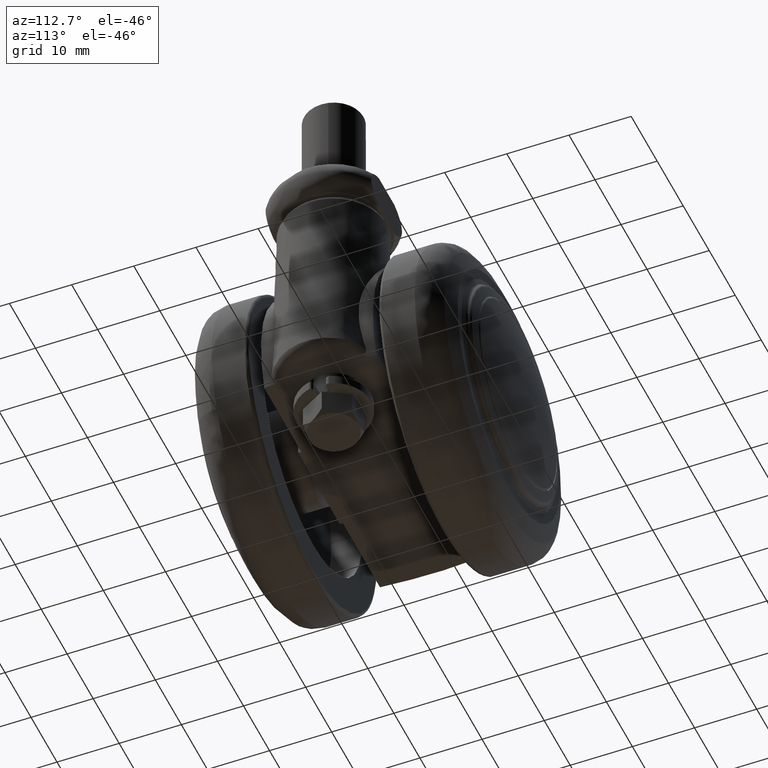
[diagram: clean part render]
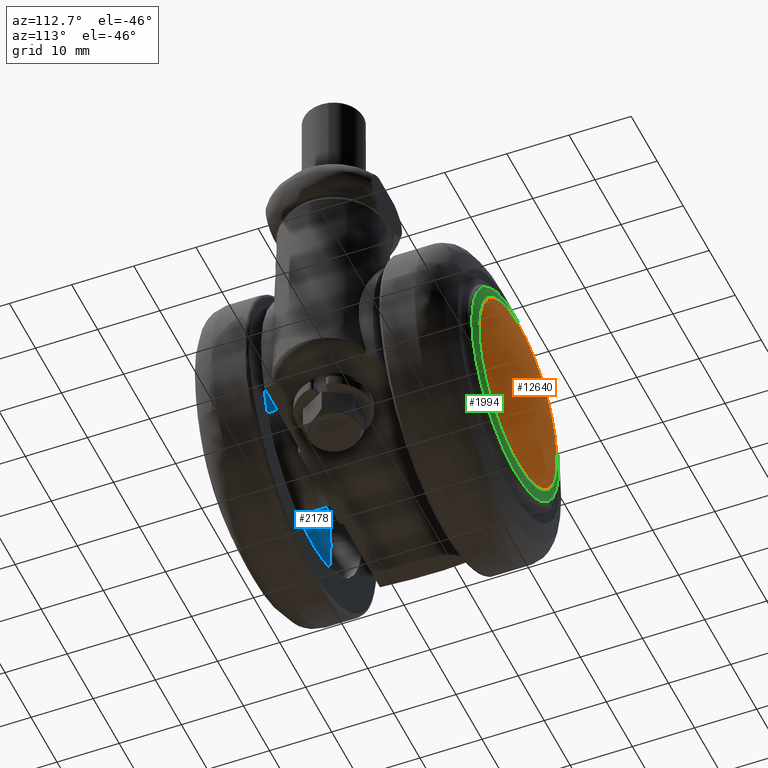
[diagram: same view with three faces highlighted in distinct colors, each labeled with its STEP entity id]
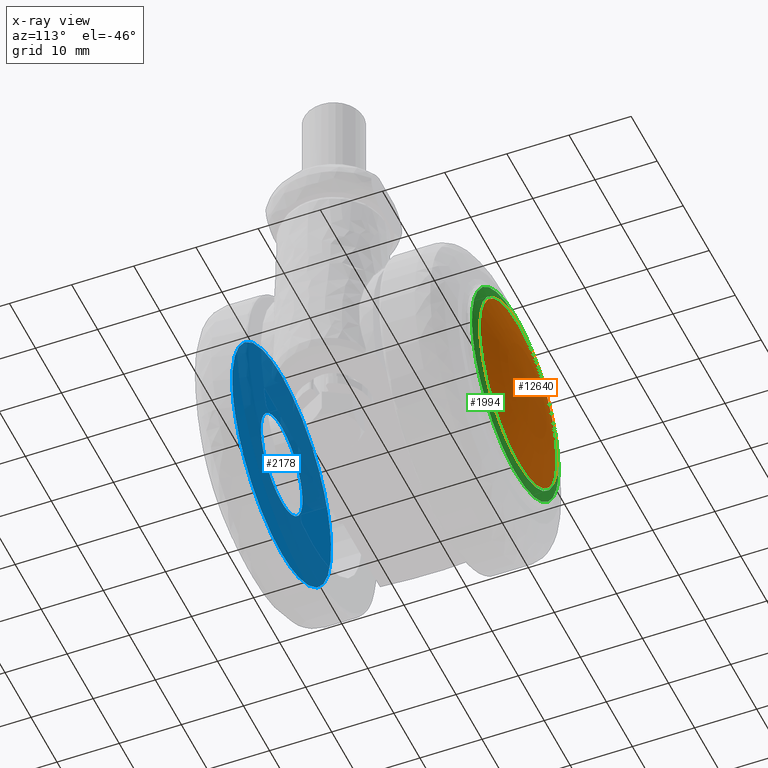
[diagram: x-ray of the same camera — body ghosted, the three highlighted faces saturated]
A machine part, auxiliary view with three faces highlighted in distinct colors.
The next image is the same camera in x-ray (body ghosted, the three faces saturated) — at least one of them is partly hidden behind the body in this view.
Their STEP definitions:

[orange] entity #12640 — the highlighted face is a freeform B-spline surface patch.
#9549=CARTESIAN_POINT('',(5.926938161823641,22.599255053341800,-13.481635294383331));
#9550=VERTEX_POINT('',#9549);
#9564=CARTESIAN_POINT('',(0.0,22.599255056600999,14.726951002130320));
#9565=VERTEX_POINT('',#9564);
#9566=CARTESIAN_POINT('',(0.0,22.599255056600999,14.726951002130320));
#9567=CARTESIAN_POINT('',(14.726951002130319,22.599255056600999,14.726951002130319));
#9568=CARTESIAN_POINT('',(14.726951002130320,22.599255056600999,-2.621149E-016));
#9569=CARTESIAN_POINT('',(14.726951002130319,22.599255056600992,-9.612881172707668));
#9570=CARTESIAN_POINT('',(5.926938161823641,22.599255053341789,-13.481635294383334));
#9578=(BOUNDED_CURVE()B_SPLINE_CURVE(2,(#9566,#9567,#9568,#9569,#9570),.UNSPECIFIED.,.F.,.U.)B_SPLINE_CURVE_WITH_KNOTS((3,2,3),(0.500000000000000,0.750000000000000,0.931662010431912),.UNSPECIFIED.)CURVE()GEOMETRIC_REPRESENTATION_ITEM()RATIONAL_B_SPLINE_CURVE((1.0,0.707106781186548,1.0,0.787169716113897,0.883644850240147))REPRESENTATION_ITEM(''));
#9579=EDGE_CURVE('',#9565,#9550,#9578,.T.);
#9581=CARTESIAN_POINT('',(-14.309172923474369,22.599255056404619,-3.482909141406380));
#9582=VERTEX_POINT('',#9581);
#9583=CARTESIAN_POINT('',(-14.309172923474376,22.599255056404626,-3.482909141406380));
#9584=CARTESIAN_POINT('',(-14.726951002130326,22.599255056601002,-1.766510998526684));
#9585=CARTESIAN_POINT('',(-14.726951002130320,22.599255056600999,-2.621149E-016));
#9586=CARTESIAN_POINT('',(-14.726951002130319,22.599255056600999,14.726951002130319));
#9587=CARTESIAN_POINT('',(0.0,22.599255056600999,14.726951002130320));
#9595=(BOUNDED_CURVE()B_SPLINE_CURVE(2,(#9583,#9584,#9585,#9586,#9587),.UNSPECIFIED.,.F.,.U.)B_SPLINE_CURVE_WITH_KNOTS((3,2,3),(0.209598322307066,0.250000000000000,0.500000000000000),.UNSPECIFIED.)CURVE()GEOMETRIC_REPRESENTATION_ITEM()RATIONAL_B_SPLINE_CURVE((0.920631806224154,0.952666490300212,1.0,0.707106781186548,1.0))REPRESENTATION_ITEM(''));
#9596=EDGE_CURVE('',#9582,#9565,#9595,.T.);
#9641=CARTESIAN_POINT('',(0.0,22.599255056600999,-14.726951002130320));
#9642=VERTEX_POINT('',#9641);
#9643=CARTESIAN_POINT('',(0.0,22.599255056600999,-14.726951002130320));
#9644=CARTESIAN_POINT('',(-11.572328774366317,22.599255056600992,-14.726951002130322));
#9645=CARTESIAN_POINT('',(-14.309172923474378,22.599255056404619,-3.482909141406380));
#9653=(BOUNDED_CURVE()B_SPLINE_CURVE(2,(#9643,#9644,#9645),.UNSPECIFIED.,.F.,.U.)B_SPLINE_CURVE_WITH_KNOTS((3,3),(0.0,0.209598322307066),.UNSPECIFIED.)CURVE()GEOMETRIC_REPRESENTATION_ITEM()RATIONAL_B_SPLINE_CURVE((1.0,0.754440290886335,0.920631806224154))REPRESENTATION_ITEM(''));
#9654=EDGE_CURVE('',#9642,#9582,#9653,.T.);
#9656=CARTESIAN_POINT('',(5.926938161823641,22.599255053341793,-13.481635294383336));
#9657=CARTESIAN_POINT('',(3.094296429752681,22.599255056600999,-14.726951002130324));
#9658=CARTESIAN_POINT('',(0.0,22.599255056600999,-14.726951002130320));
#9666=(BOUNDED_CURVE()B_SPLINE_CURVE(2,(#9656,#9657,#9658),.UNSPECIFIED.,.F.,.U.)B_SPLINE_CURVE_WITH_KNOTS((3,3),(0.931662010431912,1.0),.UNSPECIFIED.)CURVE()GEOMETRIC_REPRESENTATION_ITEM()RATIONAL_B_SPLINE_CURVE((0.883644850240147,0.919937065072651,1.0))REPRESENTATION_ITEM(''));
#9667=EDGE_CURVE('',#9550,#9642,#9666,.T.);
#12610=CARTESIAN_POINT('',(-15.829709842010661,20.005647351095902,15.829986090365244));
#12611=CARTESIAN_POINT('',(-8.071202480209092,22.208393669579195,16.142686665696019));
#12612=CARTESIAN_POINT('',(8.068882567178905,22.208393669579195,16.142686665696019));
#12613=CARTESIAN_POINT('',(15.825336094572215,20.006888932141290,15.830162344482185));
#12614=CARTESIAN_POINT('',(-16.142416089958182,22.208472070397931,8.071348897715129));
#12615=CARTESIAN_POINT('',(-8.233857186931674,24.499999999999989,8.234000878099884));
#12616=CARTESIAN_POINT('',(8.231490521911994,24.499999999999989,8.234000878099884));
#12617=CARTESIAN_POINT('',(16.137959491341814,22.209763189586987,8.071440540976507));
#12618=CARTESIAN_POINT('',(-16.142416089958182,22.208472070397931,-8.071348783451848));
#12619=CARTESIAN_POINT('',(-8.233857186931674,24.499999999999989,-8.234000761533995));
#12620=CARTESIAN_POINT('',(8.231490521911994,24.499999999999989,-8.234000761533995));
#12621=CARTESIAN_POINT('',(16.137959491341814,22.209763189586987,-8.071440426711929));
#12622=CARTESIAN_POINT('',(-15.829709850692895,20.005647412256948,-15.829985874948019));
#12623=CARTESIAN_POINT('',(-8.071202484723408,22.208393733180419,-16.142686446198404));
#12624=CARTESIAN_POINT('',(8.068882571691924,22.208393733180419,-16.142686446198404));
#12625=CARTESIAN_POINT('',(15.825336103252146,20.006888993303701,-15.830162129062655));
#12633=(BOUNDED_SURFACE()B_SPLINE_SURFACE(2,2,((#12610,#12614,#12618,#12622),(#12611,#12615,#12619,#12623),(#12612,#12616,#12620,#12624),(#12613,#12617,#12621,#12625)),.UNSPECIFIED.,.F.,.F.,.U.)B_SPLINE_SURFACE_WITH_KNOTS((3,1,3),(3,1,3),(13.223013078975679,29.153157823789790,45.078723752689363),(13.222735077905661,29.153157823789780,45.083580344152452),.UNSPECIFIED.)GEOMETRIC_REPRESENTATION_ITEM()RATIONAL_B_SPLINE_SURFACE(((1.040304246775229,1.020151771710773,1.020151771710773,1.040304246204646),(1.020152475064455,1.0,1.0,1.020152474493872),(1.020152475064455,1.0,1.0,1.020152474493872),(1.040292663956154,1.020140188891698,1.020140188891698,1.040292663385571)))REPRESENTATION_ITEM('')SURFACE());
#12634=ORIENTED_EDGE('',*,*,#9654,.T.);
#12635=ORIENTED_EDGE('',*,*,#9596,.T.);
#12636=ORIENTED_EDGE('',*,*,#9579,.T.);
#12637=ORIENTED_EDGE('',*,*,#9667,.T.);
#12638=EDGE_LOOP('',(#12634,#12635,#12636,#12637));
#12639=FACE_OUTER_BOUND('',#12638,.T.);
#12640=ADVANCED_FACE('',(#12639),#12633,.T.);

[blue] entity #2178 — the highlighted face is a freeform B-spline surface patch.
#707=CARTESIAN_POINT('',(18.867183934076060,-15.500000000000000,-2.242625781784472));
#708=VERTEX_POINT('',#707);
#714=CARTESIAN_POINT('',(0.0,-15.500000000000000,19.0));
#715=VERTEX_POINT('',#714);
#716=CARTESIAN_POINT('',(18.867183934076067,-15.500000000000002,-2.242625781784472));
#717=CARTESIAN_POINT('',(19.000000000000004,-15.500000000000002,-1.125245804602314));
#718=CARTESIAN_POINT('',(19.0,-15.500000000000000,1.789254E-015));
#719=CARTESIAN_POINT('',(18.999999999999993,-15.500000000000004,19.000000000000011));
#720=CARTESIAN_POINT('',(0.0,-15.500000000000000,19.0));
#728=(BOUNDED_CURVE()B_SPLINE_CURVE(2,(#716,#717,#718,#719,#720),.UNSPECIFIED.,.F.,.U.)B_SPLINE_CURVE_WITH_KNOTS((3,2,3),(0.229562694557769,0.250000000000000,0.500000000000000),.UNSPECIFIED.)CURVE()GEOMETRIC_REPRESENTATION_ITEM()RATIONAL_B_SPLINE_CURVE((0.956027187439954,0.976056207300605,1.0,0.707106781186548,1.0))REPRESENTATION_ITEM(''));
#729=EDGE_CURVE('',#708,#715,#728,.T.);
#731=CARTESIAN_POINT('',(-18.964561776099870,-15.500000000000000,1.159912341684948));
#732=VERTEX_POINT('',#731);
#733=CARTESIAN_POINT('',(0.0,-15.500000000000000,19.0));
#734=CARTESIAN_POINT('',(-17.873424627987653,-15.500000000000011,19.000000000000004));
#735=CARTESIAN_POINT('',(-18.964561776099874,-15.500000000000002,1.159912341684948));
#743=(BOUNDED_CURVE()B_SPLINE_CURVE(2,(#733,#734,#735),.UNSPECIFIED.,.F.,.U.)B_SPLINE_CURVE_WITH_KNOTS((3,3),(0.500000000000000,0.739333052402168),.UNSPECIFIED.)CURVE()GEOMETRIC_REPRESENTATION_ITEM()RATIONAL_B_SPLINE_CURVE((1.0,0.719603887653921,0.976072234903748))REPRESENTATION_ITEM(''));
#744=EDGE_CURVE('',#715,#732,#743,.T.);
#818=CARTESIAN_POINT('',(0.0,-15.500000000000000,-19.0));
#819=VERTEX_POINT('',#818);
#820=CARTESIAN_POINT('',(-18.964561776099874,-15.500000000000002,1.159912341684948));
#821=CARTESIAN_POINT('',(-18.999999999999993,-15.499999999999995,0.580497534042113));
#822=CARTESIAN_POINT('',(-19.0,-15.500000000000000,1.789254E-015));
#823=CARTESIAN_POINT('',(-18.999999999999993,-15.500000000000004,-18.999999999999993));
#824=CARTESIAN_POINT('',(0.0,-15.500000000000000,-19.0));
#832=(BOUNDED_CURVE()B_SPLINE_CURVE(2,(#820,#821,#822,#823,#824),.UNSPECIFIED.,.F.,.U.)B_SPLINE_CURVE_WITH_KNOTS((3,2,3),(0.739333052402168,0.750000000000000,1.0),.UNSPECIFIED.)CURVE()GEOMETRIC_REPRESENTATION_ITEM()RATIONAL_B_SPLINE_CURVE((0.976072234903748,0.987502893532626,1.0,0.707106781186548,1.0))REPRESENTATION_ITEM(''));
#833=EDGE_CURVE('',#732,#819,#832,.T.);
#835=CARTESIAN_POINT('',(0.0,-15.500000000000000,-19.0));
#836=CARTESIAN_POINT('',(16.875338219963027,-15.500000000000002,-19.000000000000004));
#837=CARTESIAN_POINT('',(18.867183934076067,-15.500000000000002,-2.242625781784472));
#845=(BOUNDED_CURVE()B_SPLINE_CURVE(2,(#835,#836,#837),.UNSPECIFIED.,.F.,.U.)B_SPLINE_CURVE_WITH_KNOTS((3,3),(0.0,0.229562694557769),.UNSPECIFIED.)CURVE()GEOMETRIC_REPRESENTATION_ITEM()RATIONAL_B_SPLINE_CURVE((1.0,0.731050573885943,0.956027187439954))REPRESENTATION_ITEM(''));
#846=EDGE_CURVE('',#819,#708,#845,.T.);
#938=CARTESIAN_POINT('',(6.260868117324914,-15.500000000000000,4.980113494433962));
#939=VERTEX_POINT('',#938);
#945=CARTESIAN_POINT('',(0.0,-15.500000000000000,-7.999999999999998));
#946=VERTEX_POINT('',#945);
#947=CARTESIAN_POINT('',(0.0,-15.500000000000000,-7.999999999999998));
#948=CARTESIAN_POINT('',(8.0,-15.500000000000004,-7.999999999999999));
#949=CARTESIAN_POINT('',(8.0,-15.500000000000000,1.789254E-015));
#950=CARTESIAN_POINT('',(8.0,-15.499999999999996,2.793722487838900));
#951=CARTESIAN_POINT('',(6.260868117324915,-15.499999999999996,4.980113494433962));
#959=(BOUNDED_CURVE()B_SPLINE_CURVE(2,(#947,#948,#949,#950,#951),.UNSPECIFIED.,.F.,.U.)B_SPLINE_CURVE_WITH_KNOTS((3,2,3),(0.0,0.250000000000000,0.357863790383099),.UNSPECIFIED.)CURVE()GEOMETRIC_REPRESENTATION_ITEM()RATIONAL_B_SPLINE_CURVE((1.0,0.707106781186548,1.0,0.873629708965099,0.856305646592916))REPRESENTATION_ITEM(''));
#960=EDGE_CURVE('',#946,#939,#959,.T.);
#962=CARTESIAN_POINT('',(-4.980113885802535,-15.500000000000000,6.260867806016989));
#963=VERTEX_POINT('',#962);
#964=CARTESIAN_POINT('',(-4.980113885802535,-15.499999999999996,6.260867806016988));
#965=CARTESIAN_POINT('',(-8.0,-15.500000000000005,3.858744452382991));
#966=CARTESIAN_POINT('',(-8.0,-15.500000000000000,1.789254E-015));
#967=CARTESIAN_POINT('',(-8.0,-15.500000000000004,-7.999999999999999));
#968=CARTESIAN_POINT('',(0.0,-15.500000000000000,-7.999999999999998));
#976=(BOUNDED_CURVE()B_SPLINE_CURVE(2,(#964,#965,#966,#967,#968),.UNSPECIFIED.,.F.,.U.)B_SPLINE_CURVE_WITH_KNOTS((3,2,3),(0.607863799845580,0.750000000000000,1.0),.UNSPECIFIED.)CURVE()GEOMETRIC_REPRESENTATION_ITEM()RATIONAL_B_SPLINE_CURVE((0.856305643553368,0.833477083307435,1.0,0.707106781186548,1.0))REPRESENTATION_ITEM(''));
#977=EDGE_CURVE('',#963,#946,#976,.T.);
#1017=CARTESIAN_POINT('',(0.0,-15.500000000000000,8.000000000000002));
#1018=VERTEX_POINT('',#1017);
#1019=CARTESIAN_POINT('',(0.0,-15.500000000000000,8.000000000000002));
#1020=CARTESIAN_POINT('',(-2.793722768372724,-15.499999999999996,8.000000000000002));
#1021=CARTESIAN_POINT('',(-4.980113885802535,-15.499999999999996,6.260867806016988));
#1029=(BOUNDED_CURVE()B_SPLINE_CURVE(2,(#1019,#1020,#1021),.UNSPECIFIED.,.F.,.U.)B_SPLINE_CURVE_WITH_KNOTS((3,3),(0.500000000000000,0.607863799845580),.UNSPECIFIED.)CURVE()GEOMETRIC_REPRESENTATION_ITEM()RATIONAL_B_SPLINE_CURVE((1.0,0.873629697879112,0.856305643553368))REPRESENTATION_ITEM(''));
#1030=EDGE_CURVE('',#1018,#963,#1029,.T.);
#1032=CARTESIAN_POINT('',(6.260868117324915,-15.499999999999996,4.980113494433962));
#1033=CARTESIAN_POINT('',(3.858744760597227,-15.500000000000007,8.000000000000002));
#1034=CARTESIAN_POINT('',(0.0,-15.500000000000000,8.000000000000002));
#1042=(BOUNDED_CURVE()B_SPLINE_CURVE(2,(#1032,#1033,#1034),.UNSPECIFIED.,.F.,.U.)B_SPLINE_CURVE_WITH_KNOTS((3,3),(0.357863790383099,0.500000000000000),.UNSPECIFIED.)CURVE()GEOMETRIC_REPRESENTATION_ITEM()RATIONAL_B_SPLINE_CURVE((0.856305646592916,0.833477072221449,1.0))REPRESENTATION_ITEM(''));
#1043=EDGE_CURVE('',#939,#1018,#1042,.T.);
#2161=CARTESIAN_POINT('',(-20.897637839953578,-15.500000000000000,20.898099926348628));
#2162=CARTESIAN_POINT('',(-20.897637839953578,-15.500000000000000,-20.898100945588052));
#2163=CARTESIAN_POINT('',(20.897754372994580,-15.500000000000000,20.898099926348628));
#2164=CARTESIAN_POINT('',(20.897754372994580,-15.500000000000000,-20.898100945588052));
#2165=B_SPLINE_SURFACE_WITH_KNOTS('',1,1,((#2161,#2163),(#2162,#2164)),.UNSPECIFIED.,.F.,.F.,.U.,(2,2),(2,2),(0.0,41.796200871936684),(0.0,41.795392212948158),.UNSPECIFIED.);
#2166=ORIENTED_EDGE('',*,*,#833,.F.);
#2167=ORIENTED_EDGE('',*,*,#744,.F.);
#2168=ORIENTED_EDGE('',*,*,#729,.F.);
#2169=ORIENTED_EDGE('',*,*,#846,.F.);
#2170=EDGE_LOOP('',(#2166,#2167,#2168,#2169));
#2171=FACE_OUTER_BOUND('',#2170,.T.);
#2172=ORIENTED_EDGE('',*,*,#960,.T.);
#2173=ORIENTED_EDGE('',*,*,#1043,.T.);
#2174=ORIENTED_EDGE('',*,*,#1030,.T.);
#2175=ORIENTED_EDGE('',*,*,#977,.T.);
#2176=EDGE_LOOP('',(#2172,#2173,#2174,#2175));
#2177=FACE_BOUND('',#2176,.T.);
#2178=ADVANCED_FACE('',(#2171,#2177),#2165,.F.);

[green] entity #1994 — the highlighted face is a freeform B-spline surface patch.
#271=CARTESIAN_POINT('',(14.994445190505630,-22.512973365200398,-1.782305649655313));
#272=VERTEX_POINT('',#271);
#278=CARTESIAN_POINT('',(0.0,-22.512973365200398,15.100000000000000));
#279=VERTEX_POINT('',#278);
#280=CARTESIAN_POINT('',(14.994445190505633,-22.512973365200391,-1.782305649655313));
#281=CARTESIAN_POINT('',(15.100000000000001,-22.512973365200398,-0.894278500216034));
#282=CARTESIAN_POINT('',(15.100000000000000,-22.512973365200398,1.789254E-015));
#283=CARTESIAN_POINT('',(15.100000000000005,-22.512973365200398,15.100000000000005));
#284=CARTESIAN_POINT('',(0.0,-22.512973365200398,15.100000000000000));
#292=(BOUNDED_CURVE()B_SPLINE_CURVE(2,(#280,#281,#282,#283,#284),.UNSPECIFIED.,.F.,.U.)B_SPLINE_CURVE_WITH_KNOTS((3,2,3),(0.229562600807169,0.250000000000000,0.500000000000000),.UNSPECIFIED.)CURVE()GEOMETRIC_REPRESENTATION_ITEM()RATIONAL_B_SPLINE_CURVE((0.956027003684635,0.976056097464945,1.0,0.707106781186547,1.0))REPRESENTATION_ITEM(''));
#293=EDGE_CURVE('',#272,#279,#292,.T.);
#295=CARTESIAN_POINT('',(-15.071836612331500,-22.512973365200398,0.921814043516923));
#296=VERTEX_POINT('',#295);
#297=CARTESIAN_POINT('',(0.0,-22.512973365200398,15.100000000000000));
#298=CARTESIAN_POINT('',(-14.204679459406439,-22.512973365200402,15.100000000000005));
#299=CARTESIAN_POINT('',(-15.071836612331499,-22.512973365200406,0.921814043516923));
#307=(BOUNDED_CURVE()B_SPLINE_CURVE(2,(#297,#298,#299),.UNSPECIFIED.,.F.,.U.)B_SPLINE_CURVE_WITH_KNOTS((3,3),(0.500000000000000,0.739333178654347),.UNSPECIFIED.)CURVE()GEOMETRIC_REPRESENTATION_ITEM()RATIONAL_B_SPLINE_CURVE((1.0,0.719603739740293,0.976072505486564))REPRESENTATION_ITEM(''));
#308=EDGE_CURVE('',#279,#296,#307,.T.);
#382=CARTESIAN_POINT('',(0.0,-22.512973365200398,-15.100000000000000));
#383=VERTEX_POINT('',#382);
#384=CARTESIAN_POINT('',(-15.071836612331499,-22.512973365200406,0.921814043516923));
#385=CARTESIAN_POINT('',(-15.100000000000001,-22.512973365200395,0.461337247578161));
#386=CARTESIAN_POINT('',(-15.100000000000000,-22.512973365200398,1.789254E-015));
#387=CARTESIAN_POINT('',(-15.100000000000005,-22.512973365200398,-15.100000000000005));
#388=CARTESIAN_POINT('',(0.0,-22.512973365200398,-15.100000000000000));
#396=(BOUNDED_CURVE()B_SPLINE_CURVE(2,(#384,#385,#386,#387,#388),.UNSPECIFIED.,.F.,.U.)B_SPLINE_CURVE_WITH_KNOTS((3,2,3),(0.739333178654347,0.750000000000000,1.0),.UNSPECIFIED.)CURVE()GEOMETRIC_REPRESENTATION_ITEM()RATIONAL_B_SPLINE_CURVE((0.976072505486564,0.987503041446255,1.0,0.707106781186547,1.0))REPRESENTATION_ITEM(''));
#397=EDGE_CURVE('',#296,#383,#396,.T.);
#399=CARTESIAN_POINT('',(0.0,-22.512973365200398,-15.100000000000000));
#400=CARTESIAN_POINT('',(13.411445514334423,-22.512973365200402,-15.100000000000003));
#401=CARTESIAN_POINT('',(14.994445190505633,-22.512973365200391,-1.782305649655313));
#409=(BOUNDED_CURVE()B_SPLINE_CURVE(2,(#399,#400,#401),.UNSPECIFIED.,.F.,.U.)B_SPLINE_CURVE_WITH_KNOTS((3,3),(0.0,0.229562600807169),.UNSPECIFIED.)CURVE()GEOMETRIC_REPRESENTATION_ITEM()RATIONAL_B_SPLINE_CURVE((1.0,0.731050683721603,0.956027003684635))REPRESENTATION_ITEM(''));
#410=EDGE_CURVE('',#383,#272,#409,.T.);
#1176=CARTESIAN_POINT('',(16.633451953372830,-22.069978466749529,-1.046488095012391));
#1177=VERTEX_POINT('',#1176);
#1191=CARTESIAN_POINT('',(0.0,-22.069978467936402,-16.666339162555900));
#1192=VERTEX_POINT('',#1191);
#1193=CARTESIAN_POINT('',(0.0,-22.069978467936402,-16.666339162555900));
#1194=CARTESIAN_POINT('',(15.650734216631728,-22.069978467936405,-16.666339162555897));
#1195=CARTESIAN_POINT('',(16.633451953372841,-22.069978466749529,-1.046488095012392));
#1203=(BOUNDED_CURVE()B_SPLINE_CURVE(2,(#1193,#1194,#1195),.UNSPECIFIED.,.F.,.U.)B_SPLINE_CURVE_WITH_KNOTS((3,3),(0.0,0.239031910738582),.UNSPECIFIED.)CURVE()GEOMETRIC_REPRESENTATION_ITEM()RATIONAL_B_SPLINE_CURVE((1.0,0.719956697058588,0.975427680450210))REPRESENTATION_ITEM(''));
#1204=EDGE_CURVE('',#1192,#1177,#1203,.T.);
#1206=CARTESIAN_POINT('',(0.0,-22.069978467936402,16.666339162555900));
#1207=VERTEX_POINT('',#1206);
#1208=CARTESIAN_POINT('',(0.0,-22.069978467936402,16.666339162555900));
#1209=CARTESIAN_POINT('',(-16.666339162555897,-22.069978467936405,16.666339162555897));
#1210=CARTESIAN_POINT('',(-16.666339162555900,-22.069978467936402,1.789254E-015));
#1211=CARTESIAN_POINT('',(-16.666339162555897,-22.069978467936405,-16.666339162555897));
#1212=CARTESIAN_POINT('',(0.0,-22.069978467936402,-16.666339162555900));
#1220=(BOUNDED_CURVE()B_SPLINE_CURVE(2,(#1208,#1209,#1210,#1211,#1212),.UNSPECIFIED.,.F.,.U.)B_SPLINE_CURVE_WITH_KNOTS((3,2,3),(0.500000000000000,0.750000000000000,1.0),.UNSPECIFIED.)CURVE()GEOMETRIC_REPRESENTATION_ITEM()RATIONAL_B_SPLINE_CURVE((1.0,0.707106781186547,1.0,0.707106781186547,1.0))REPRESENTATION_ITEM(''));
#1221=EDGE_CURVE('',#1207,#1192,#1220,.T.);
#1223=CARTESIAN_POINT('',(6.855630670792029,-22.069978467430602,15.191023311329239));
#1224=VERTEX_POINT('',#1223);
#1225=CARTESIAN_POINT('',(6.855630670792029,-22.069978467430591,15.191023311329245));
#1226=CARTESIAN_POINT('',(3.586557613493556,-22.069978467936391,16.666339162555900));
#1227=CARTESIAN_POINT('',(0.0,-22.069978467936402,16.666339162555900));
#1235=(BOUNDED_CURVE()B_SPLINE_CURVE(2,(#1225,#1226,#1227),.UNSPECIFIED.,.F.,.U.)B_SPLINE_CURVE_WITH_KNOTS((3,3),(0.430143025647759,0.500000000000000),.UNSPECIFIED.)CURVE()GEOMETRIC_REPRESENTATION_ITEM()RATIONAL_B_SPLINE_CURVE((0.882053103076177,0.918157463701614,1.0))REPRESENTATION_ITEM(''));
#1236=EDGE_CURVE('',#1224,#1207,#1235,.T.);
#1287=CARTESIAN_POINT('',(16.633451953372841,-22.069978466749529,-1.046488095012392));
#1288=CARTESIAN_POINT('',(16.666339162555900,-22.069978467936402,-0.523760808577487));
#1289=CARTESIAN_POINT('',(16.666339162555900,-22.069978467936402,1.789254E-015));
#1290=CARTESIAN_POINT('',(16.666339162555904,-22.069978467936394,10.763501037866602));
#1291=CARTESIAN_POINT('',(6.855630670792029,-22.069978467430598,15.191023311329248));
#1299=(BOUNDED_CURVE()B_SPLINE_CURVE(2,(#1287,#1288,#1289,#1290,#1291),.UNSPECIFIED.,.F.,.U.)B_SPLINE_CURVE_WITH_KNOTS((3,2,3),(0.239031910738582,0.250000000000000,0.430143025647759),.UNSPECIFIED.)CURVE()GEOMETRIC_REPRESENTATION_ITEM()RATIONAL_B_SPLINE_CURVE((0.975427680450210,0.987150084127960,1.0,0.788949317484934,0.882053103076177))REPRESENTATION_ITEM(''));
#1300=EDGE_CURVE('',#1177,#1224,#1299,.T.);
#1958=CARTESIAN_POINT('',(-17.805041908350375,-18.789210452853400,-17.805170034991008));
#1959=CARTESIAN_POINT('',(-9.125736689969410,-21.572989771254967,-18.251604780307645));
#1960=CARTESIAN_POINT('',(9.124419893353217,-21.572989767385426,-18.251604780307655));
#1961=CARTESIAN_POINT('',(17.802598369449683,-18.789994127756170,-17.805295714161627));
#1962=CARTESIAN_POINT('',(-18.251479984325378,-21.573031032207385,-9.125805641647862));
#1963=CARTESIAN_POINT('',(-9.360437294752948,-24.499999848291239,-9.360504689335180));
#1964=CARTESIAN_POINT('',(9.359086632689618,-24.499999844322179,-9.360504689335182));
#1965=CARTESIAN_POINT('',(18.248978407299081,-21.573854499380424,-9.125871671998606));
#1966=CARTESIAN_POINT('',(-18.251479984325378,-21.573031331886977,9.125804982395330));
#1967=CARTESIAN_POINT('',(-9.360437294752948,-24.500000155678041,9.360503912396620));
#1968=CARTESIAN_POINT('',(9.359086632689618,-24.500000151708981,9.360503912396618));
#1969=CARTESIAN_POINT('',(18.248978407299081,-21.573854799062183,9.125871012712963));
#1970=CARTESIAN_POINT('',(-17.805041988396116,-18.789211536687265,17.805168749592802));
#1971=CARTESIAN_POINT('',(-9.125736732024461,-21.572990895092921,18.251603366532059));
#1972=CARTESIAN_POINT('',(9.124419935402198,-21.572990891223391,18.251603366532059));
#1973=CARTESIAN_POINT('',(17.802598449485007,-18.789995211601205,17.805294428727265));
#1981=(BOUNDED_SURFACE()B_SPLINE_SURFACE(2,2,((#1958,#1962,#1966,#1970),(#1959,#1963,#1967,#1971),(#1960,#1964,#1968,#1972),(#1961,#1965,#1969,#1973)),.UNSPECIFIED.,.F.,.F.,.U.)B_SPLINE_SURFACE_WITH_KNOTS((3,1,3),(3,1,3),(12.230433914041519,30.297970171461749,48.362899330282211),(12.230303772401809,30.297970171461760,48.365634910154341),.UNSPECIFIED.)GEOMETRIC_REPRESENTATION_ITEM()RATIONAL_B_SPLINE_SURFACE(((1.051436705337843,1.025718167418620,1.025718167418620,1.051436700610922),(1.025718537919223,1.0,1.0,1.025718533192301),(1.025718537919223,1.0,1.0,1.025718533192301),(1.051429283743691,1.025710745824469,1.025710745824469,1.051429279016770)))REPRESENTATION_ITEM('')SURFACE());
#1982=ORIENTED_EDGE('',*,*,#1204,.T.);
#1983=ORIENTED_EDGE('',*,*,#1300,.T.);
#1984=ORIENTED_EDGE('',*,*,#1236,.T.);
#1985=ORIENTED_EDGE('',*,*,#1221,.T.);
#1986=EDGE_LOOP('',(#1982,#1983,#1984,#1985));
#1987=FACE_OUTER_BOUND('',#1986,.T.);
#1988=ORIENTED_EDGE('',*,*,#308,.F.);
#1989=ORIENTED_EDGE('',*,*,#293,.F.);
#1990=ORIENTED_EDGE('',*,*,#410,.F.);
#1991=ORIENTED_EDGE('',*,*,#397,.F.);
#1992=EDGE_LOOP('',(#1988,#1989,#1990,#1991));
#1993=FACE_BOUND('',#1992,.T.);
#1994=ADVANCED_FACE('',(#1987,#1993),#1981,.T.);